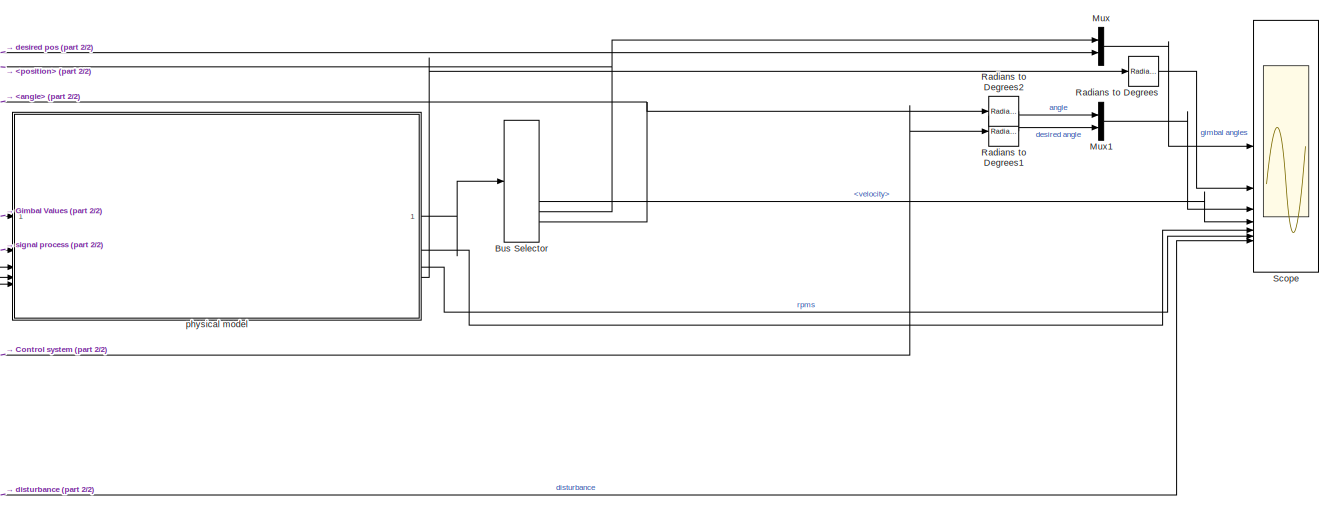
[diagram: root canvas - part 1/2, top right region]
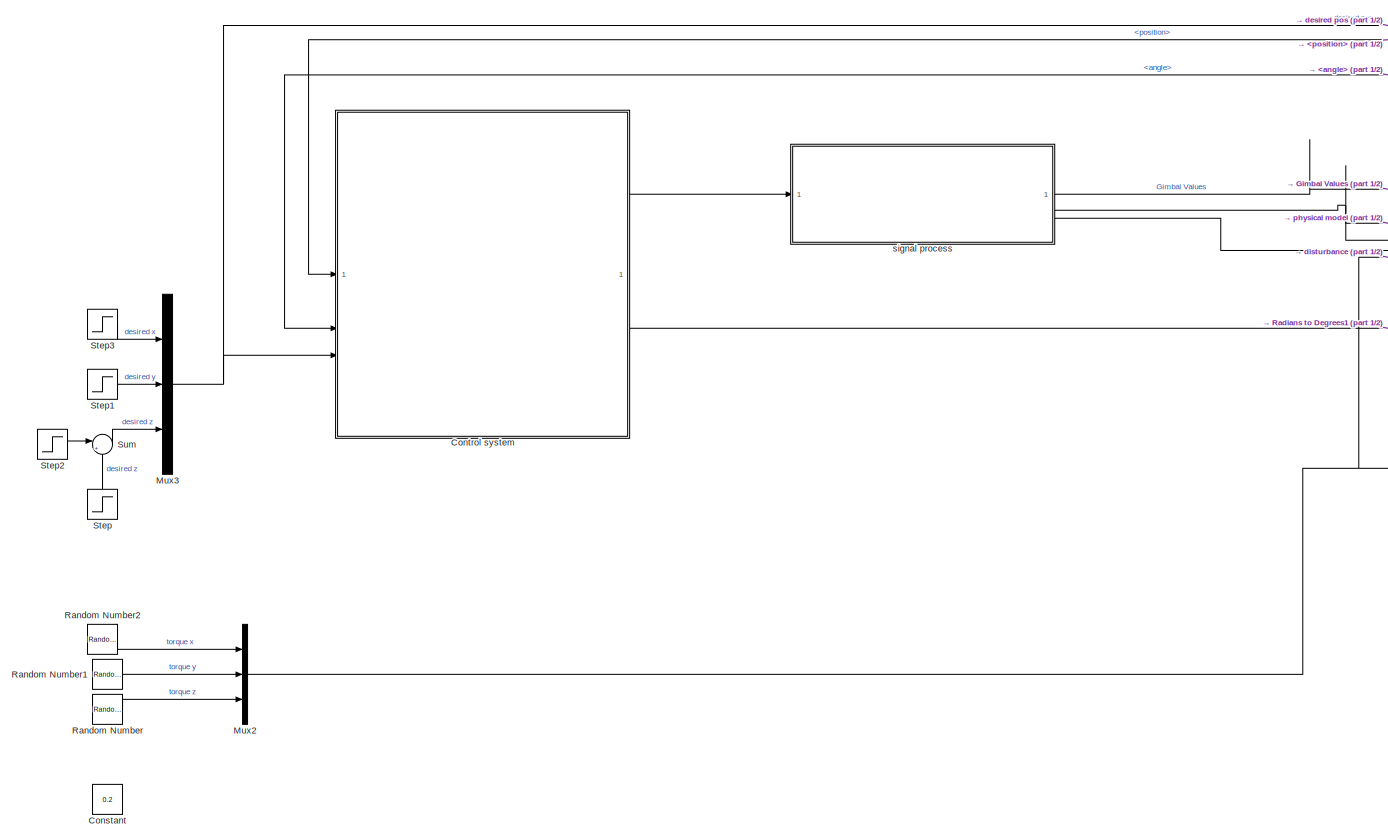
[diagram: root canvas - part 2/2, left side, full height]
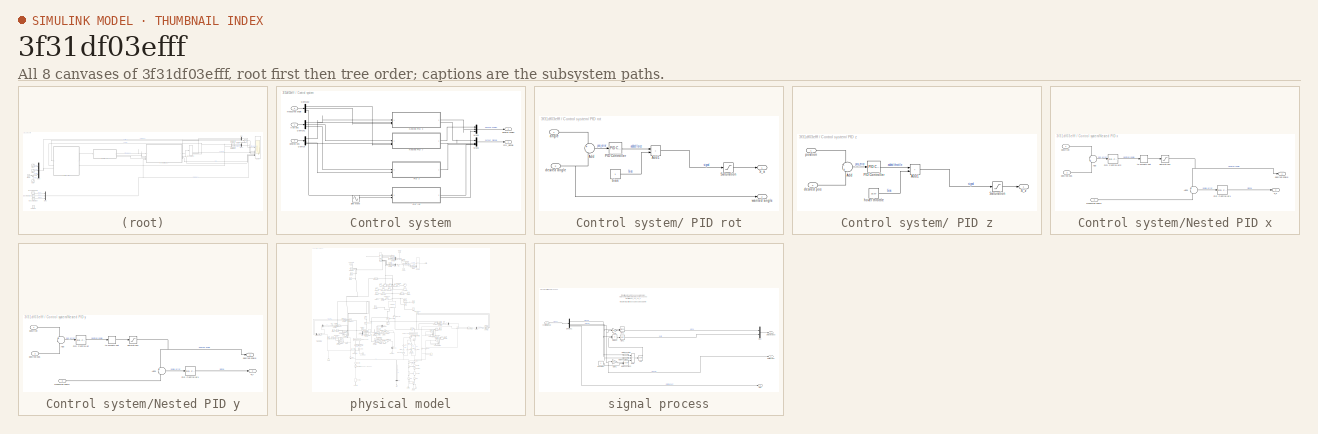
[diagram: thumbnail index - all 8 canvases of the model, root first then tree order]
MODEL slx_3f31df03efff
KIND model
CONFIG AbsTol = auto
CONFIG EnableMultiTasking = off
CONFIG FixedStep = auto
CONFIG MaxStep = 0.001
CONFIG MinStep = auto
CONFIG RelTol = auto
CONFIG SampleTimeConstraint = Unconstrained
CONFIG SolverName = VariableStepAuto
CONFIG StartTime = 0.0
CONFIG StopTime = 20
BLOCK [BusSelector] Bus Selector
  OutputSignals = acceleration,velocity,position,angular velocity,angle
BLOCK [Constant] Constant
  Value = 0.2
BLOCK [SubSystem] Control system
BLOCK [SubSystem] Control system/ PID rot
BLOCK [Sum] Control system/ PID rot/Add
  Inputs = +-
BLOCK [Sum] Control system/ PID rot/Add1
  IconShape = rectangular
BLOCK [Reference] Control system/ PID rot/PID Controller  REF=slpidlib/PID Controller
  LibrarySourceBlock = simulink/Continuous/PID Controller
  SourceBlock = slpidlib/PID Controller
  SourceType = PID 1dof
BLOCK [Outport] Control system/ PID rot/S_a
BLOCK [Saturate] Control system/ PID rot/Saturation
  LowerLimit = 0.5
  UpperLimit = 1.5
BLOCK [Inport] Control system/ PID rot/angle
  NameLocation = top
BLOCK [Constant] Control system/ PID rot/bias
BLOCK [Inport] Control system/ PID rot/desired angle
  NameLocation = top
  Port = 2
BLOCK [Outport] Control system/ PID rot/wanted angle
  Port = 2
BLOCK [SubSystem] Control system/ PID z
BLOCK [Sum] Control system/ PID z/Add
  Inputs = -+
BLOCK [Sum] Control system/ PID z/Add1
  IconShape = rectangular
BLOCK [Reference] Control system/ PID z/PID Controller  REF=slpidlib/PID Controller
  LibrarySourceBlock = simulink/Continuous/PID Controller
  SourceBlock = slpidlib/PID Controller
  SourceType = PID 1dof
BLOCK [Outport] Control system/ PID z/S_z
BLOCK [Saturate] Control system/ PID z/Saturation
  LowerLimit = 1e-3
  UpperLimit = 100
BLOCK [Inport] Control system/ PID z/desired pos
  NameLocation = top
  Port = 2
BLOCK [Constant] Control system/ PID z/hover throttle
  Value = 33.57
BLOCK [Inport] Control system/ PID z/position
  NameLocation = top
BLOCK [Demux] Control system/Demux
  Outputs = 3
BLOCK [Demux] Control system/Demux1
  Outputs = 3
BLOCK [Demux] Control system/Demux2
  Outputs = 3
BLOCK [Mux] Control system/Mux3
  DisplayOption = bar
BLOCK [Mux] Control system/Mux5
  DisplayOption = bar
  Inputs = 3
BLOCK [SubSystem] Control system/Nested PID x
BLOCK [Sum] Control system/Nested PID x/Add
  Inputs = -+
BLOCK [Sum] Control system/Nested PID x/Add1
  Inputs = +-
BLOCK [Reference] Control system/Nested PID x/PID Controller1  REF=slpidlib/PID Controller
  LibrarySourceBlock = simulink/Continuous/PID Controller
  SourceBlock = slpidlib/PID Controller
  SourceType = PID 1dof
BLOCK [Reference] Control system/Nested PID x/PID Controller2  REF=slpidlib/PID Controller
  LibrarySourceBlock = simulink/Continuous/PID Controller
  SourceBlock = slpidlib/PID Controller
  SourceType = PID 1dof
BLOCK [Outport] Control system/Nested PID x/S_x
  Port = 2
BLOCK [Saturate] Control system/Nested PID x/Saturation1
  LowerLimit = -deg2rad(20)
  UpperLimit = deg2rad(20)
BLOCK [Outport] Control system/Nested PID x/desired angle
BLOCK [Inport] Control system/Nested PID x/desired pos
  NameLocation = top
  Port = 2
BLOCK [Inport] Control system/Nested PID x/measured angle
  Port = 3
BLOCK [Inport] Control system/Nested PID x/position
  NameLocation = top
BLOCK [RateLimiter] Control system/Nested PID x/to smooth out
  FallingSlewLimit = -deg2rad(45)
  RisingSlewLimit = deg2rad(45)
  SampleTimeMode = inherited
BLOCK [SubSystem] Control system/Nested PID y
BLOCK [Sum] Control system/Nested PID y/Add
  Inputs = +-
BLOCK [Sum] Control system/Nested PID y/Add1
  Inputs = +-
BLOCK [Reference] Control system/Nested PID y/PID Controller  REF=slpidlib/PID Controller
  LibrarySourceBlock = simulink/Continuous/PID Controller
  SourceBlock = slpidlib/PID Controller
  SourceType = PID 1dof
BLOCK [Reference] Control system/Nested PID y/PID Controller1  REF=slpidlib/PID Controller
  LibrarySourceBlock = simulink/Continuous/PID Controller
  SourceBlock = slpidlib/PID Controller
  SourceType = PID 1dof
BLOCK [Outport] Control system/Nested PID y/S_y
  Port = 2
BLOCK [Saturate] Control system/Nested PID y/Saturation1
  LowerLimit = -deg2rad(20)
  UpperLimit = deg2rad(20)
BLOCK [Outport] Control system/Nested PID y/desired angle
BLOCK [Inport] Control system/Nested PID y/desired pos
  NameLocation = top
  Port = 2
BLOCK [Inport] Control system/Nested PID y/measured angle
  Port = 3
BLOCK [Inport] Control system/Nested PID y/position
  NameLocation = top
BLOCK [RateLimiter] Control system/Nested PID y/to smooth out
  FallingSlewLimit = -deg2rad(45)
  RisingSlewLimit = deg2rad(45)
  SampleTimeMode = inherited
BLOCK [Outport] Control system/PID_signals
BLOCK [Sin] Control system/Sine Wave
  Amplitude = pi/3
  Frequency = 0.7
  SampleTime = 0
BLOCK [Outport] Control system/desired angles
  Port = 2
BLOCK [Inport] Control system/desired pos
  Port = 3
BLOCK [Inport] Control system/measured angle
  Port = 2
BLOCK [Inport] Control system/true pos
BLOCK [Mux] Mux
  DisplayOption = bar
  Inputs = 2
BLOCK [Mux] Mux1
  DisplayOption = bar
  Inputs = 2
BLOCK [Mux] Mux2
  DisplayOption = bar
  Inputs = 3
BLOCK [Mux] Mux3
  DisplayOption = bar
  Inputs = 3
BLOCK [Reference] Radians to Degrees  REF=simulink_extras/Transformations/Radians
to Degrees
  SourceBlock = simulink_extras/Transformations/Radians\nto Degrees
  SourceType = RadiansToDegrees
BLOCK [Reference] Radians to Degrees1  REF=simulink_extras/Transformations/Radians
to Degrees
  SourceBlock = simulink_extras/Transformations/Radians\nto Degrees
  SourceType = RadiansToDegrees
BLOCK [Reference] Radians to Degrees2  REF=simulink_extras/Transformations/Radians
to Degrees
  SourceBlock = simulink_extras/Transformations/Radians\nto Degrees
  SourceType = RadiansToDegrees
BLOCK [RandomNumber] Random Number
  SampleTime = 2
  Variance = 0
BLOCK [RandomNumber] Random Number1
  SampleTime = 1
  Seed = 458
  Variance = 0
BLOCK [RandomNumber] Random Number2
  SampleTime = 1
  Variance = 0
BLOCK [Scope] Scope
  Floating = off
  NumInputPorts = 7
  ScopeSpecificationString = Simulink.scopes.TimeScopeBlockCfg('CurrentConfiguration', extmgr.ConfigurationSet(extmgr.Configuration('Core','General UI',true,'FigureColor',[0.313725490196078 0.313725490196078 0.313725490196078]),extmgr.Configuration('Core','Source UI',true),extmgr.Configuration('Sources','WiredSimulink',true,'DataLoggingVariableName','ScopeData1'),extmgr.Configuration('Visuals','Time Domain',true,'SerializedDi...<+8390ch>
BLOCK [Step] Step
  After = -2
  NameLocation = right
  SampleTime = 0
  Time = 15
BLOCK [Step] Step1
  After = 0
  SampleTime = 0
  Time = 0.5
BLOCK [Step] Step2
  After = 2
  SampleTime = 0
  Time = 2
BLOCK [Step] Step3
  After = 0
  SampleTime = 0
  Time = 0.5
BLOCK [Sum] Sum
  Inputs = |++
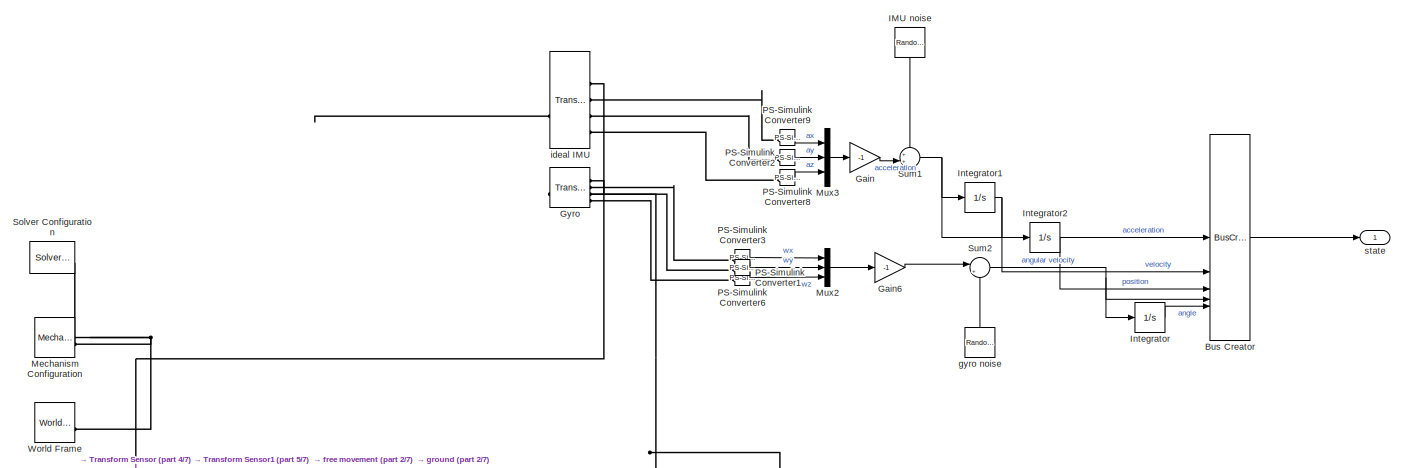
[diagram: physical model - part 1/7, top center region]
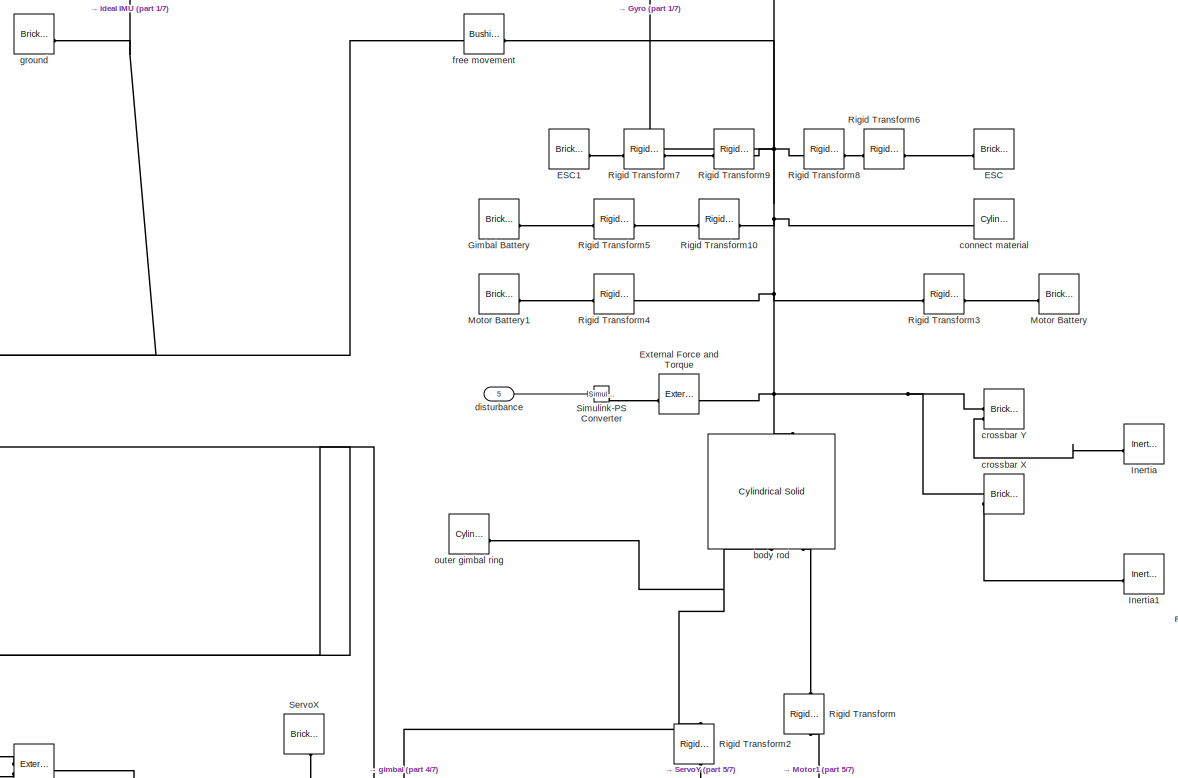
[diagram: physical model - part 2/7, central region]
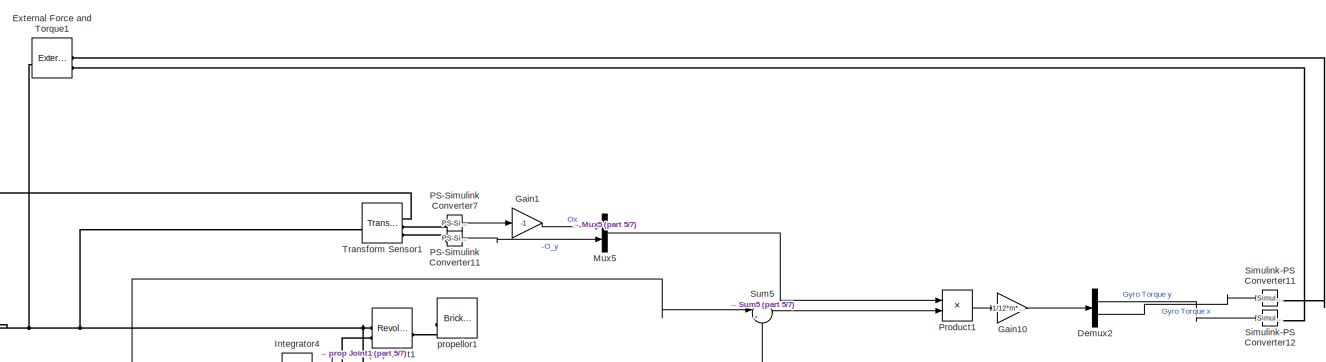
[diagram: physical model - part 3/7, middle right region]
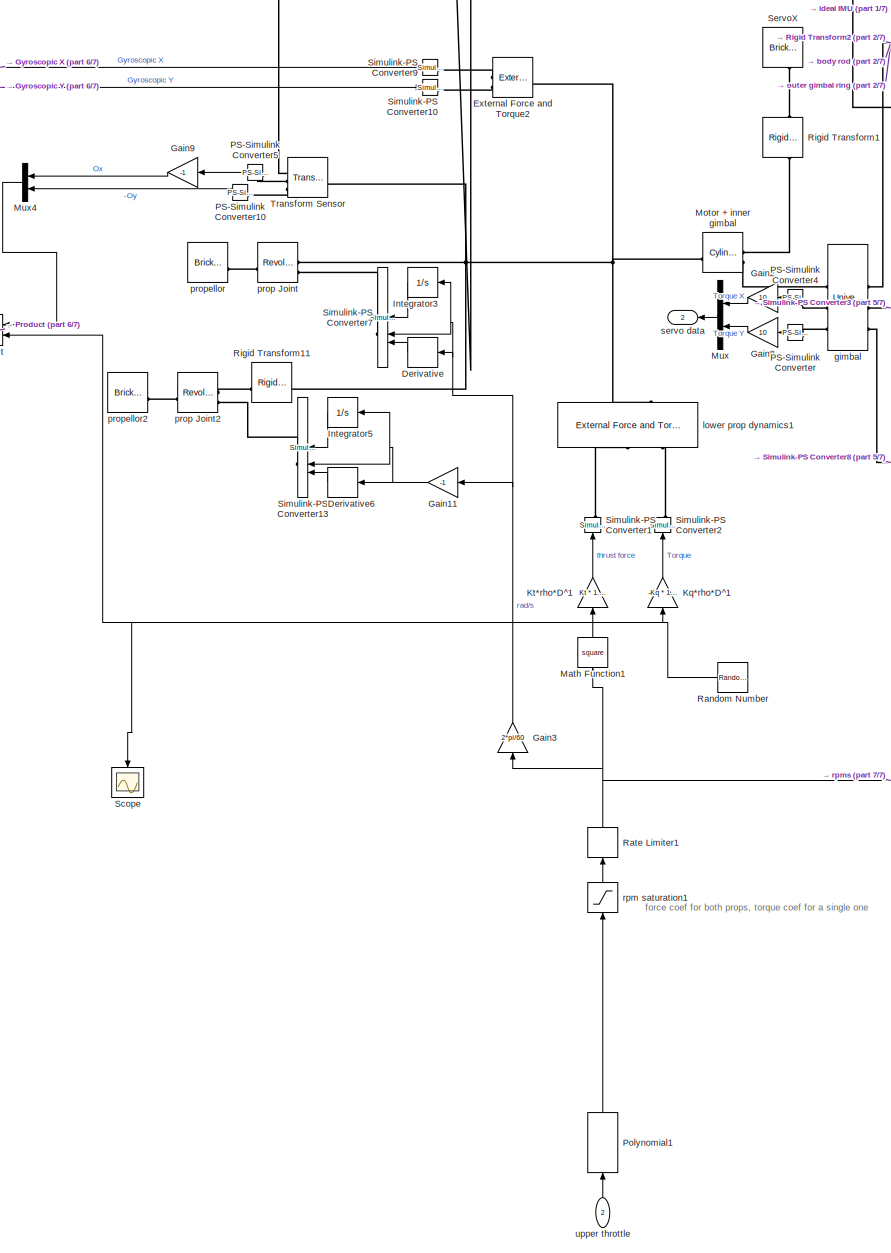
[diagram: physical model - part 4/7, bottom left region]
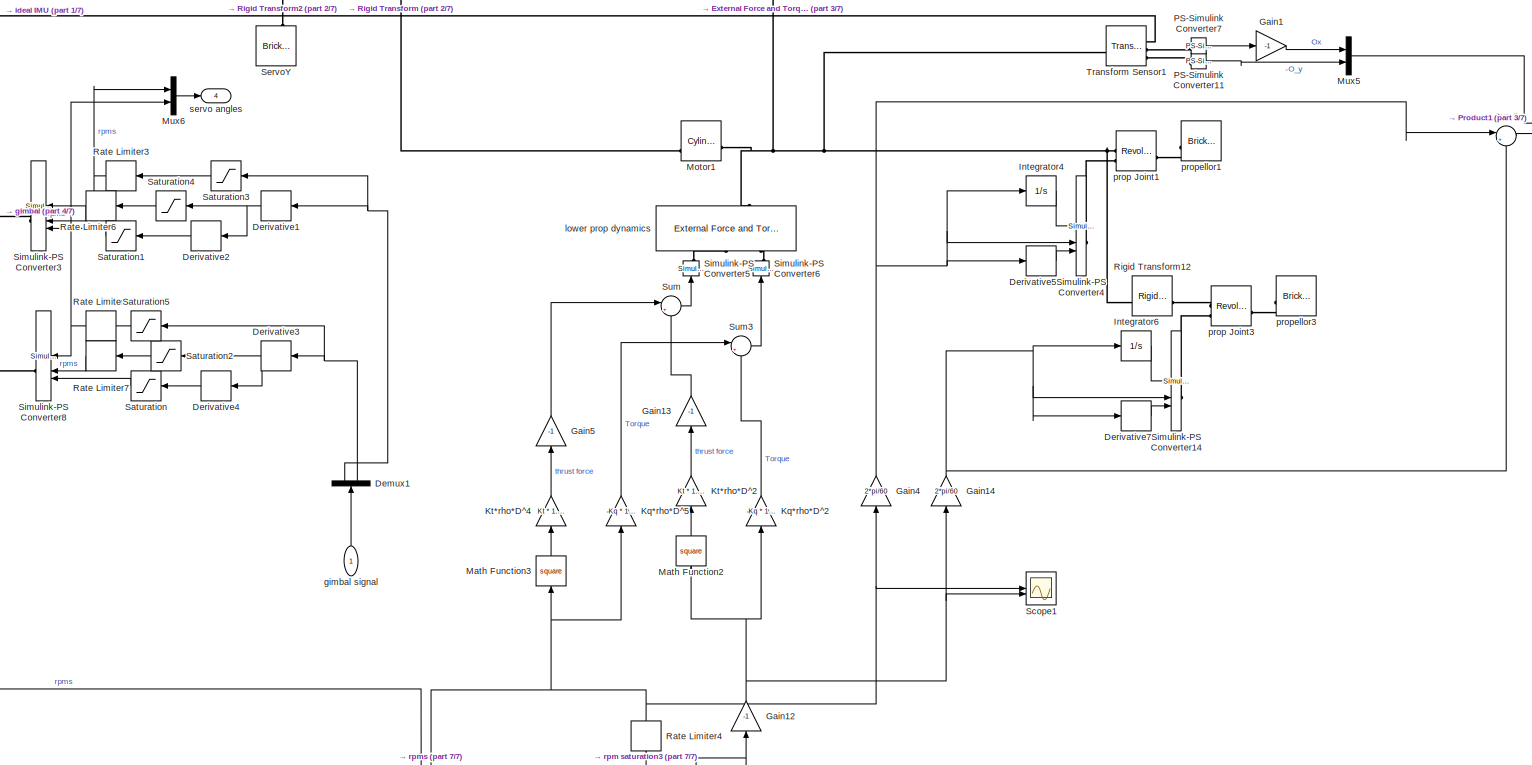
[diagram: physical model - part 5/7, central region]
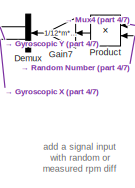
[diagram: physical model - part 6/7, middle left region]
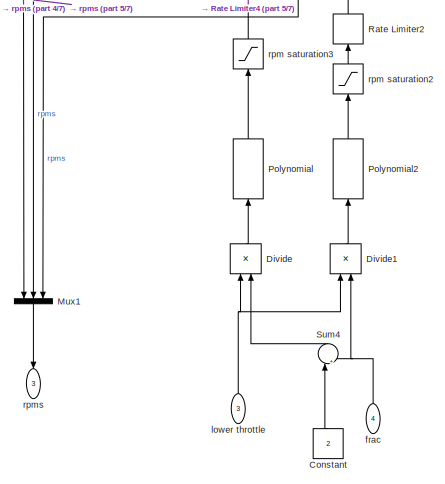
[diagram: physical model - part 7/7, bottom center region]
BLOCK [SubSystem] physical model
BLOCK [BusCreator] physical model/Bus Creator
  DisplayOption = bar
  InheritFromInputs = on
  Inputs = 5
BLOCK [Constant] physical model/Constant
  NameLocation = right
  Value = 2
BLOCK [Demux] physical model/Demux
  NameLocation = top
  Outputs = 2
BLOCK [Demux] physical model/Demux1
  NameLocation = right
  Outputs = 2
BLOCK [Demux] physical model/Demux2
  Outputs = 2
BLOCK [Derivative] physical model/Derivative
  NameLocation = top
BLOCK [Derivative] physical model/Derivative1
  NameLocation = top
BLOCK [Derivative] physical model/Derivative2
  NameLocation = top
BLOCK [Derivative] physical model/Derivative3
  NameLocation = top
BLOCK [Derivative] physical model/Derivative4
  NameLocation = top
BLOCK [Derivative] physical model/Derivative5
  NameLocation = top
BLOCK [Derivative] physical model/Derivative6
  NameLocation = top
BLOCK [Derivative] physical model/Derivative7
  NameLocation = top
BLOCK [Product] physical model/Divide
  Inputs = **
  NameLocation = right
BLOCK [Product] physical model/Divide1
  Inputs = **
  NameLocation = right
BLOCK [Reference] physical model/ESC  REF=sm_lib/Body Elements/Brick Solid
  SourceBlock = sm_lib/Body Elements/Brick Solid
  SourceType = Brick Solid
BLOCK [Reference] physical model/ESC1  REF=sm_lib/Body Elements/Brick Solid
  SourceBlock = sm_lib/Body Elements/Brick Solid
  SourceType = Brick Solid
BLOCK [Reference] physical model/External Force and Torque  REF=sm_lib/Forces and
Torques/External Force
and Torque
  SourceBlock = sm_lib/Forces and\nTorques/External Force\nand Torque
  SourceType = External Force\nand Torque
BLOCK [Reference] physical model/External Force and Torque1  REF=sm_lib/Forces and
Torques/External Force
and Torque
  SourceBlock = sm_lib/Forces and\nTorques/External Force\nand Torque
  SourceType = External Force\nand Torque
BLOCK [Reference] physical model/External Force and Torque2  REF=sm_lib/Forces and
Torques/External Force
and Torque
  SourceBlock = sm_lib/Forces and\nTorques/External Force\nand Torque
  SourceType = External Force\nand Torque
BLOCK [Gain] physical model/Gain
  Gain = -1
BLOCK [Gain] physical model/Gain1
  Gain = -1
BLOCK [Gain] physical model/Gain10
  Gain = 1/12*m*D^2
  NameLocation = top
BLOCK [Gain] physical model/Gain11
  Gain = -1
  NameLocation = top
BLOCK [Gain] physical model/Gain12
  Gain = -1
  NameLocation = right
BLOCK [Gain] physical model/Gain13
  Gain = -1
  NameLocation = right
BLOCK [Gain] physical model/Gain14
  Gain = 2*pi/60
  NameLocation = right
BLOCK [Gain] physical model/Gain2
  Gain = 10
  NameLocation = top
BLOCK [Gain] physical model/Gain3
  Gain = 2*pi/60
  NameLocation = right
BLOCK [Gain] physical model/Gain4
  Gain = 2*pi/60
  NameLocation = right
BLOCK [Gain] physical model/Gain5
  Gain = -1
  NameLocation = right
BLOCK [Gain] physical model/Gain6
  Gain = -1
BLOCK [Gain] physical model/Gain7
  Gain = 1/12*m*D^2
  NameLocation = top
BLOCK [Gain] physical model/Gain8
  Gain = 10
  NameLocation = top
BLOCK [Gain] physical model/Gain9
  Gain = -1
  NameLocation = top
BLOCK [Reference] physical model/Gimbal Battery  REF=sm_lib/Body Elements/Brick Solid
  SourceBlock = sm_lib/Body Elements/Brick Solid
  SourceType = Brick Solid
BLOCK [Reference] physical model/Gyro  REF=sm_lib/Frames and
Transforms/Transform
Sensor
  SourceBlock = sm_lib/Frames and\nTransforms/Transform\nSensor
  SourceType = Transform\nSensor
BLOCK [RandomNumber] physical model/IMU noise
  NameLocation = left
  SampleTime = 0.1
  Variance = 0
BLOCK [Reference] physical model/Inertia  REF=sm_lib/Body Elements/Inertia
  NameLocation = top
  SourceBlock = sm_lib/Body Elements/Inertia
  SourceType = Inertia
BLOCK [Reference] physical model/Inertia1  REF=sm_lib/Body Elements/Inertia
  NameLocation = top
  SourceBlock = sm_lib/Body Elements/Inertia
  SourceType = Inertia
BLOCK [Integrator] physical model/Integrator
BLOCK [Integrator] physical model/Integrator1
BLOCK [Integrator] physical model/Integrator2
BLOCK [Integrator] physical model/Integrator3
  NameLocation = top
BLOCK [Integrator] physical model/Integrator4
  NameLocation = top
BLOCK [Integrator] physical model/Integrator5
  NameLocation = top
BLOCK [Integrator] physical model/Integrator6
  NameLocation = top
BLOCK [Gain] physical model/Kq*rho*D^1
  Gain = -Kq * 1.225 * D^5
  NameLocation = right
BLOCK [Gain] physical model/Kq*rho*D^2
  Gain = -Kq * 1.225 * D^5
  NameLocation = right
BLOCK [Gain] physical model/Kq*rho*D^5
  Gain = -Kq * 1.225 * D^5
  NameLocation = right
BLOCK [Gain] physical model/Kt*rho*D^1
  Gain = Kt * 1.225 * D^4*2
  NameLocation = right
BLOCK [Gain] physical model/Kt*rho*D^2
  Gain = Kt * 1.225 * D^4
  NameLocation = right
BLOCK [Gain] physical model/Kt*rho*D^4
  Gain = Kt * 1.225 * D^4
  NameLocation = right
BLOCK [Math] physical model/Math Function1
  NameLocation = right
  Operator = square
BLOCK [Math] physical model/Math Function2
  NameLocation = right
  Operator = square
BLOCK [Math] physical model/Math Function3
  NameLocation = right
  Operator = square
BLOCK [Reference] physical model/Mechanism Configuration  REF=sm_lib/Utilities/Mechanism
Configuration
  SourceBlock = sm_lib/Utilities/Mechanism\nConfiguration
  SourceType = Mechanism\nConfiguration
BLOCK [Reference] physical model/Motor + inner gimbal  REF=sm_lib/Body Elements/Cylindrical Solid
  NameLocation = top
  SourceBlock = sm_lib/Body Elements/Cylindrical Solid
  SourceType = Cylindrical Solid
BLOCK [Reference] physical model/Motor Battery  REF=sm_lib/Body Elements/Brick Solid
  SourceBlock = sm_lib/Body Elements/Brick Solid
  SourceType = Brick Solid
BLOCK [Reference] physical model/Motor Battery1  REF=sm_lib/Body Elements/Brick Solid
  SourceBlock = sm_lib/Body Elements/Brick Solid
  SourceType = Brick Solid
BLOCK [Reference] physical model/Motor1  REF=sm_lib/Body Elements/Cylindrical Solid
  NameLocation = top
  SourceBlock = sm_lib/Body Elements/Cylindrical Solid
  SourceType = Cylindrical Solid
BLOCK [Mux] physical model/Mux
  DisplayOption = bar
  Inputs = 2
  NameLocation = top
BLOCK [Mux] physical model/Mux1
  DisplayOption = bar
  Inputs = 3
  NameLocation = left
BLOCK [Mux] physical model/Mux2
  DisplayOption = bar
  Inputs = 3
BLOCK [Mux] physical model/Mux3
  DisplayOption = bar
  Inputs = 3
BLOCK [Mux] physical model/Mux4
  DisplayOption = bar
  Inputs = 2
  NameLocation = top
BLOCK [Mux] physical model/Mux5
  DisplayOption = bar
  Inputs = 2
BLOCK [Mux] physical model/Mux6
  DisplayOption = bar
  Inputs = 2
BLOCK [Reference] physical model/PS-Simulink Converter  REF=nesl_utility/PS-Simulink
Converter
  NameLocation = top
  SourceBlock = nesl_utility/PS-Simulink\nConverter
  SourceType = PS-Simulink\nConverter
BLOCK [Reference] physical model/PS-Simulink Converter1  REF=nesl_utility/PS-Simulink
Converter
  SourceBlock = nesl_utility/PS-Simulink\nConverter
  SourceType = PS-Simulink\nConverter
BLOCK [Reference] physical model/PS-Simulink Converter10  REF=nesl_utility/PS-Simulink
Converter
  NameLocation = top
  SourceBlock = nesl_utility/PS-Simulink\nConverter
  SourceType = PS-Simulink\nConverter
BLOCK [Reference] physical model/PS-Simulink Converter11  REF=nesl_utility/PS-Simulink
Converter
  SourceBlock = nesl_utility/PS-Simulink\nConverter
  SourceType = PS-Simulink\nConverter
BLOCK [Reference] physical model/PS-Simulink Converter2  REF=nesl_utility/PS-Simulink
Converter
  SourceBlock = nesl_utility/PS-Simulink\nConverter
  SourceType = PS-Simulink\nConverter
BLOCK [Reference] physical model/PS-Simulink Converter3  REF=nesl_utility/PS-Simulink
Converter
  SourceBlock = nesl_utility/PS-Simulink\nConverter
  SourceType = PS-Simulink\nConverter
BLOCK [Reference] physical model/PS-Simulink Converter4  REF=nesl_utility/PS-Simulink
Converter
  NameLocation = top
  SourceBlock = nesl_utility/PS-Simulink\nConverter
  SourceType = PS-Simulink\nConverter
BLOCK [Reference] physical model/PS-Simulink Converter5  REF=nesl_utility/PS-Simulink
Converter
  NameLocation = top
  SourceBlock = nesl_utility/PS-Simulink\nConverter
  SourceType = PS-Simulink\nConverter
BLOCK [Reference] physical model/PS-Simulink Converter6  REF=nesl_utility/PS-Simulink
Converter
  SourceBlock = nesl_utility/PS-Simulink\nConverter
  SourceType = PS-Simulink\nConverter
BLOCK [Reference] physical model/PS-Simulink Converter7  REF=nesl_utility/PS-Simulink
Converter
  SourceBlock = nesl_utility/PS-Simulink\nConverter
  SourceType = PS-Simulink\nConverter
BLOCK [Reference] physical model/PS-Simulink Converter8  REF=nesl_utility/PS-Simulink
Converter
  SourceBlock = nesl_utility/PS-Simulink\nConverter
  SourceType = PS-Simulink\nConverter
BLOCK [Reference] physical model/PS-Simulink Converter9  REF=nesl_utility/PS-Simulink
Converter
  SourceBlock = nesl_utility/PS-Simulink\nConverter
  SourceType = PS-Simulink\nConverter
BLOCK [Polyval] physical model/Polynomial
  Coefs = [a, b, c]
  NameLocation = right
BLOCK [Polyval] physical model/Polynomial1
  Coefs = [a, b, c]
  NameLocation = right
BLOCK [Polyval] physical model/Polynomial2
  Coefs = [a, b, c]
  NameLocation = right
BLOCK [Product] physical model/Product
  NameLocation = top
BLOCK [Product] physical model/Product1
  NameLocation = top
BLOCK [RandomNumber] physical model/Random Number
  NameLocation = top
  SampleTime = 2
  Seed = 58954
  Variance = 1e4
BLOCK [RateLimiter] physical model/Rate Limiter1
  FallingSlewLimit = -RPM_rate
  NameLocation = right
  RisingSlewLimit = RPM_rate
  SampleTimeMode = inherited
BLOCK [RateLimiter] physical model/Rate Limiter2
  FallingSlewLimit = -RPM_rate
  NameLocation = right
  RisingSlewLimit = RPM_rate
  SampleTimeMode = inherited
BLOCK [RateLimiter] physical model/Rate Limiter3
  FallingSlewLimit = -deg2rad(Servo_rate)
  NameLocation = top
  RisingSlewLimit = deg2rad(Servo_rate)
  SampleTimeMode = inherited
BLOCK [RateLimiter] physical model/Rate Limiter4
  FallingSlewLimit = -RPM_rate
  NameLocation = right
  RisingSlewLimit = RPM_rate
  SampleTimeMode = inherited
BLOCK [RateLimiter] physical model/Rate Limiter5
  FallingSlewLimit = -deg2rad(Servo_rate)
  NameLocation = top
  RisingSlewLimit = deg2rad(Servo_rate)
  SampleTimeMode = inherited
BLOCK [RateLimiter] physical model/Rate Limiter6
  FallingSlewLimit = -deg2rad(Servo_acc)
  NameLocation = top
  RisingSlewLimit = deg2rad(Servo_acc)
  SampleTimeMode = inherited
BLOCK [RateLimiter] physical model/Rate Limiter7
  FallingSlewLimit = -deg2rad(Servo_acc)
  NameLocation = top
  RisingSlewLimit = deg2rad(Servo_acc)
  SampleTimeMode = inherited
BLOCK [Reference] physical model/Rigid Transform  REF=sm_lib/Frames and
Transforms/Rigid
Transform
  NameLocation = left
  SourceBlock = sm_lib/Frames and\nTransforms/Rigid\nTransform
  SourceType = Rigid\nTransform
BLOCK [Reference] physical model/Rigid Transform1  REF=sm_lib/Frames and
Transforms/Rigid
Transform
  NameLocation = right
  SourceBlock = sm_lib/Frames and\nTransforms/Rigid\nTransform
  SourceType = Rigid\nTransform
BLOCK [Reference] physical model/Rigid Transform10  REF=sm_lib/Frames and
Transforms/Rigid
Transform
  NameLocation = top
  SourceBlock = sm_lib/Frames and\nTransforms/Rigid\nTransform
  SourceType = Rigid\nTransform
BLOCK [Reference] physical model/Rigid Transform11  REF=sm_lib/Frames and
Transforms/Rigid
Transform
  NameLocation = top
  SourceBlock = sm_lib/Frames and\nTransforms/Rigid\nTransform
  SourceType = Rigid\nTransform
BLOCK [Reference] physical model/Rigid Transform12  REF=sm_lib/Frames and
Transforms/Rigid
Transform
  SourceBlock = sm_lib/Frames and\nTransforms/Rigid\nTransform
  SourceType = Rigid\nTransform
BLOCK [Reference] physical model/Rigid Transform2  REF=sm_lib/Frames and
Transforms/Rigid
Transform
  NameLocation = right
  SourceBlock = sm_lib/Frames and\nTransforms/Rigid\nTransform
  SourceType = Rigid\nTransform
BLOCK [Reference] physical model/Rigid Transform3  REF=sm_lib/Frames and
Transforms/Rigid
Transform
  SourceBlock = sm_lib/Frames and\nTransforms/Rigid\nTransform
  SourceType = Rigid\nTransform
BLOCK [Reference] physical model/Rigid Transform4  REF=sm_lib/Frames and
Transforms/Rigid
Transform
  SourceBlock = sm_lib/Frames and\nTransforms/Rigid\nTransform
  SourceType = Rigid\nTransform
BLOCK [Reference] physical model/Rigid Transform5  REF=sm_lib/Frames and
Transforms/Rigid
Transform
  SourceBlock = sm_lib/Frames and\nTransforms/Rigid\nTransform
  SourceType = Rigid\nTransform
BLOCK [Reference] physical model/Rigid Transform6  REF=sm_lib/Frames and
Transforms/Rigid
Transform
  SourceBlock = sm_lib/Frames and\nTransforms/Rigid\nTransform
  SourceType = Rigid\nTransform
BLOCK [Reference] physical model/Rigid Transform7  REF=sm_lib/Frames and
Transforms/Rigid
Transform
  SourceBlock = sm_lib/Frames and\nTransforms/Rigid\nTransform
  SourceType = Rigid\nTransform
BLOCK [Reference] physical model/Rigid Transform8  REF=sm_lib/Frames and
Transforms/Rigid
Transform
  SourceBlock = sm_lib/Frames and\nTransforms/Rigid\nTransform
  SourceType = Rigid\nTransform
BLOCK [Reference] physical model/Rigid Transform9  REF=sm_lib/Frames and
Transforms/Rigid
Transform
  NameLocation = top
  SourceBlock = sm_lib/Frames and\nTransforms/Rigid\nTransform
  SourceType = Rigid\nTransform
BLOCK [Saturate] physical model/Saturation
  LowerLimit = -deg2rad(Servo_acc)
  NameLocation = top
  UpperLimit = deg2rad(Servo_acc)
  ZeroCross = off
BLOCK [Saturate] physical model/Saturation1
  LowerLimit = -deg2rad(Servo_acc)
  NameLocation = top
  UpperLimit = deg2rad(Servo_acc)
  ZeroCross = off
BLOCK [Saturate] physical model/Saturation2
  LowerLimit = -deg2rad(Servo_rate)
  NameLocation = top
  UpperLimit = deg2rad(Servo_rate)
  ZeroCross = off
BLOCK [Saturate] physical model/Saturation3
  LowerLimit = -deg2rad(Servo_lim)
  NameLocation = top
  UpperLimit = deg2rad(Servo_lim)
  ZeroCross = off
BLOCK [Saturate] physical model/Saturation4
  LowerLimit = -deg2rad(Servo_rate)
  NameLocation = top
  UpperLimit = deg2rad(Servo_rate)
  ZeroCross = off
BLOCK [Saturate] physical model/Saturation5
  LowerLimit = -deg2rad(Servo_lim)
  NameLocation = top
  UpperLimit = deg2rad(Servo_lim)
  ZeroCross = off
BLOCK [Scope] physical model/Scope
  Floating = off
  NameLocation = left
  NumInputPorts = 1
  ScopeSpecificationString = Simulink.scopes.TimeScopeBlockCfg('CurrentConfiguration', extmgr.ConfigurationSet(extmgr.Configuration('Core','General UI',true),extmgr.Configuration('Core','Source UI',true),extmgr.Configuration('Sources','WiredSimulink',true,'DataLoggingVariableName','ScopeData1'),extmgr.Configuration('Visuals','Time Domain',true,'SerializedDisplays',{struct('MinYLimReal','-337.62839','MaxYLimReal','211.98533','...<+1565ch>
BLOCK [Scope] physical model/Scope1
  Floating = off
  NumInputPorts = 2
  ScopeSpecificationString = Simulink.scopes.TimeScopeBlockCfg('CurrentConfiguration', extmgr.ConfigurationSet(extmgr.Configuration('Core','General UI',true),extmgr.Configuration('Core','Source UI',true),extmgr.Configuration('Sources','WiredSimulink',true,'DataLoggingVariableName','ScopeData2'),extmgr.Configuration('Visuals','Time Domain',true),extmgr.Configuration('Tools','Plot Navigation',true),extmgr.Configuration('Tools',...<+40ch>
BLOCK [Reference] physical model/ServoX  REF=sm_lib/Body Elements/Brick Solid
  NameLocation = right
  SourceBlock = sm_lib/Body Elements/Brick Solid
  SourceType = Brick Solid
BLOCK [Reference] physical model/ServoY  REF=sm_lib/Body Elements/Brick Solid
  NameLocation = left
  SourceBlock = sm_lib/Body Elements/Brick Solid
  SourceType = Brick Solid
BLOCK [Reference] physical model/Simulink-PS Converter  REF=nesl_utility/Simulink-PS
Converter
  SourceBlock = nesl_utility/Simulink-PS\nConverter
  SourceType = Simulink-PS\nConverter
BLOCK [Reference] physical model/Simulink-PS Converter1  REF=nesl_utility/Simulink-PS
Converter
  NameLocation = right
  SourceBlock = nesl_utility/Simulink-PS\nConverter
  SourceType = Simulink-PS\nConverter
BLOCK [Reference] physical model/Simulink-PS Converter10  REF=nesl_utility/Simulink-PS
Converter
  SourceBlock = nesl_utility/Simulink-PS\nConverter
  SourceType = Simulink-PS\nConverter
BLOCK [Reference] physical model/Simulink-PS Converter11  REF=nesl_utility/Simulink-PS
Converter
  SourceBlock = nesl_utility/Simulink-PS\nConverter
  SourceType = Simulink-PS\nConverter
BLOCK [Reference] physical model/Simulink-PS Converter12  REF=nesl_utility/Simulink-PS
Converter
  SourceBlock = nesl_utility/Simulink-PS\nConverter
  SourceType = Simulink-PS\nConverter
BLOCK [Reference] physical model/Simulink-PS Converter13  REF=nesl_utility/Simulink-PS
Converter
  NameLocation = top
  SourceBlock = nesl_utility/Simulink-PS\nConverter
  SourceType = Simulink-PS\nConverter
BLOCK [Reference] physical model/Simulink-PS Converter14  REF=nesl_utility/Simulink-PS
Converter
  NameLocation = top
  SourceBlock = nesl_utility/Simulink-PS\nConverter
  SourceType = Simulink-PS\nConverter
BLOCK [Reference] physical model/Simulink-PS Converter2  REF=nesl_utility/Simulink-PS
Converter
  NameLocation = right
  SourceBlock = nesl_utility/Simulink-PS\nConverter
  SourceType = Simulink-PS\nConverter
BLOCK [Reference] physical model/Simulink-PS Converter3  REF=nesl_utility/Simulink-PS
Converter
  NameLocation = top
  SourceBlock = nesl_utility/Simulink-PS\nConverter
  SourceType = Simulink-PS\nConverter
BLOCK [Reference] physical model/Simulink-PS Converter4  REF=nesl_utility/Simulink-PS
Converter
  NameLocation = top
  SourceBlock = nesl_utility/Simulink-PS\nConverter
  SourceType = Simulink-PS\nConverter
BLOCK [Reference] physical model/Simulink-PS Converter5  REF=nesl_utility/Simulink-PS
Converter
  NameLocation = right
  SourceBlock = nesl_utility/Simulink-PS\nConverter
  SourceType = Simulink-PS\nConverter
BLOCK [Reference] physical model/Simulink-PS Converter6  REF=nesl_utility/Simulink-PS
Converter
  NameLocation = right
  SourceBlock = nesl_utility/Simulink-PS\nConverter
  SourceType = Simulink-PS\nConverter
BLOCK [Reference] physical model/Simulink-PS Converter7  REF=nesl_utility/Simulink-PS
Converter
  NameLocation = top
  SourceBlock = nesl_utility/Simulink-PS\nConverter
  SourceType = Simulink-PS\nConverter
BLOCK [Reference] physical model/Simulink-PS Converter8  REF=nesl_utility/Simulink-PS
Converter
  NameLocation = top
  SourceBlock = nesl_utility/Simulink-PS\nConverter
  SourceType = Simulink-PS\nConverter
BLOCK [Reference] physical model/Simulink-PS Converter9  REF=nesl_utility/Simulink-PS
Converter
  SourceBlock = nesl_utility/Simulink-PS\nConverter
  SourceType = Simulink-PS\nConverter
BLOCK [Reference] physical model/Solver Configuration  REF=nesl_utility/Solver
Configuration
  SourceBlock = nesl_utility/Solver\nConfiguration
  SourceType = Solver\nConfiguration
BLOCK [Sum] physical model/Sum
  Inputs = |++
BLOCK [Sum] physical model/Sum1
  Inputs = ++|
BLOCK [Sum] physical model/Sum2
  Inputs = |++
BLOCK [Sum] physical model/Sum3
  Inputs = |++
BLOCK [Sum] physical model/Sum4
  Inputs = |+-
  NameLocation = right
BLOCK [Sum] physical model/Sum5
  Inputs = |++
BLOCK [Reference] physical model/Transform Sensor  REF=sm_lib/Frames and
Transforms/Transform
Sensor
  NameLocation = top
  SourceBlock = sm_lib/Frames and\nTransforms/Transform\nSensor
  SourceType = Transform\nSensor
BLOCK [Reference] physical model/Transform Sensor1  REF=sm_lib/Frames and
Transforms/Transform
Sensor
  SourceBlock = sm_lib/Frames and\nTransforms/Transform\nSensor
  SourceType = Transform\nSensor
BLOCK [Reference] physical model/World Frame  REF=sm_lib/Frames and
Transforms/World Frame
  SourceBlock = sm_lib/Frames and\nTransforms/World Frame
  SourceType = World Frame
BLOCK [Reference] physical model/body rod  REF=sm_lib/Body Elements/Cylindrical Solid
  NameLocation = right
  SourceBlock = sm_lib/Body Elements/Cylindrical Solid
  SourceType = Cylindrical Solid
BLOCK [Reference] physical model/connect material  REF=sm_lib/Body Elements/Cylindrical Solid
  SourceBlock = sm_lib/Body Elements/Cylindrical Solid
  SourceType = Cylindrical Solid
BLOCK [Reference] physical model/crossbar X  REF=sm_lib/Body Elements/Brick Solid
  SourceBlock = sm_lib/Body Elements/Brick Solid
  SourceType = Brick Solid
BLOCK [Reference] physical model/crossbar Y  REF=sm_lib/Body Elements/Brick Solid
  SourceBlock = sm_lib/Body Elements/Brick Solid
  SourceType = Brick Solid
BLOCK [Inport] physical model/disturbance
  Port = 5
BLOCK [Inport] physical model/frac
  NameLocation = right
  Port = 4
BLOCK [Reference] physical model/free movement   REF=sm_lib/Joints/Bushing Joint
  SourceBlock = sm_lib/Joints/Bushing Joint
  SourceType = Bushing Joint
BLOCK [Reference] physical model/gimbal  REF=sm_lib/Joints/Universal
Joint
  NameLocation = top
  SourceBlock = sm_lib/Joints/Universal\nJoint
  SourceType = Universal\nJoint
BLOCK [Inport] physical model/gimbal signal
  NameLocation = right
BLOCK [Reference] physical model/ground  REF=sm_lib/Body Elements/Brick Solid
  NameLocation = top
  SourceBlock = sm_lib/Body Elements/Brick Solid
  SourceType = Brick Solid
BLOCK [RandomNumber] physical model/gyro noise
  NameLocation = right
  SampleTime = 0.5
  Seed = 2
  Variance = 0
BLOCK [Reference] physical model/ideal IMU  REF=sm_lib/Frames and
Transforms/Transform
Sensor
  SourceBlock = sm_lib/Frames and\nTransforms/Transform\nSensor
  SourceType = Transform\nSensor
BLOCK [Reference] physical model/lower prop dynamics  REF=sm_lib/Forces and
Torques/External Force
and Torque
  SourceBlock = sm_lib/Forces and\nTorques/External Force\nand Torque
  SourceType = External Force\nand Torque
BLOCK [Reference] physical model/lower prop dynamics1  REF=sm_lib/Forces and
Torques/External Force
and Torque
  NameLocation = right
  SourceBlock = sm_lib/Forces and\nTorques/External Force\nand Torque
  SourceType = External Force\nand Torque
BLOCK [Inport] physical model/lower throttle
  NameLocation = right
  Port = 3
BLOCK [Reference] physical model/outer gimbal ring  REF=sm_lib/Body Elements/Cylindrical Solid
  NameLocation = top
  SourceBlock = sm_lib/Body Elements/Cylindrical Solid
  SourceType = Cylindrical Solid
BLOCK [Reference] physical model/prop Joint  REF=sm_lib/Joints/Revolute Joint
  NameLocation = top
  SourceBlock = sm_lib/Joints/Revolute Joint
  SourceType = Revolute Joint
BLOCK [Reference] physical model/prop Joint1  REF=sm_lib/Joints/Revolute Joint
  NameLocation = top
  SourceBlock = sm_lib/Joints/Revolute Joint
  SourceType = Revolute Joint
BLOCK [Reference] physical model/prop Joint2  REF=sm_lib/Joints/Revolute Joint
  NameLocation = top
  SourceBlock = sm_lib/Joints/Revolute Joint
  SourceType = Revolute Joint
BLOCK [Reference] physical model/prop Joint3  REF=sm_lib/Joints/Revolute Joint
  NameLocation = top
  SourceBlock = sm_lib/Joints/Revolute Joint
  SourceType = Revolute Joint
BLOCK [Reference] physical model/propellor  REF=sm_lib/Body Elements/Brick Solid
  SourceBlock = sm_lib/Body Elements/Brick Solid
  SourceType = Brick Solid
BLOCK [Reference] physical model/propellor1  REF=sm_lib/Body Elements/Brick Solid
  SourceBlock = sm_lib/Body Elements/Brick Solid
  SourceType = Brick Solid
BLOCK [Reference] physical model/propellor2  REF=sm_lib/Body Elements/Brick Solid
  SourceBlock = sm_lib/Body Elements/Brick Solid
  SourceType = Brick Solid
BLOCK [Reference] physical model/propellor3  REF=sm_lib/Body Elements/Brick Solid
  SourceBlock = sm_lib/Body Elements/Brick Solid
  SourceType = Brick Solid
BLOCK [Saturate] physical model/rpm saturation1
  LowerLimit = RPM_min
  NameLocation = right
  UpperLimit = RPM_lim
BLOCK [Saturate] physical model/rpm saturation2
  LowerLimit = RPM_min
  NameLocation = right
  UpperLimit = RPM_lim
BLOCK [Saturate] physical model/rpm saturation3
  LowerLimit = RPM_min
  NameLocation = right
  UpperLimit = RPM_lim
BLOCK [Outport] physical model/rpms
  NameLocation = left
  Port = 3
BLOCK [Outport] physical model/servo angles
  Port = 4
BLOCK [Outport] physical model/servo data
  NameLocation = top
  Port = 2
BLOCK [Outport] physical model/state
BLOCK [Inport] physical model/upper throttle
  NameLocation = right
  Port = 2
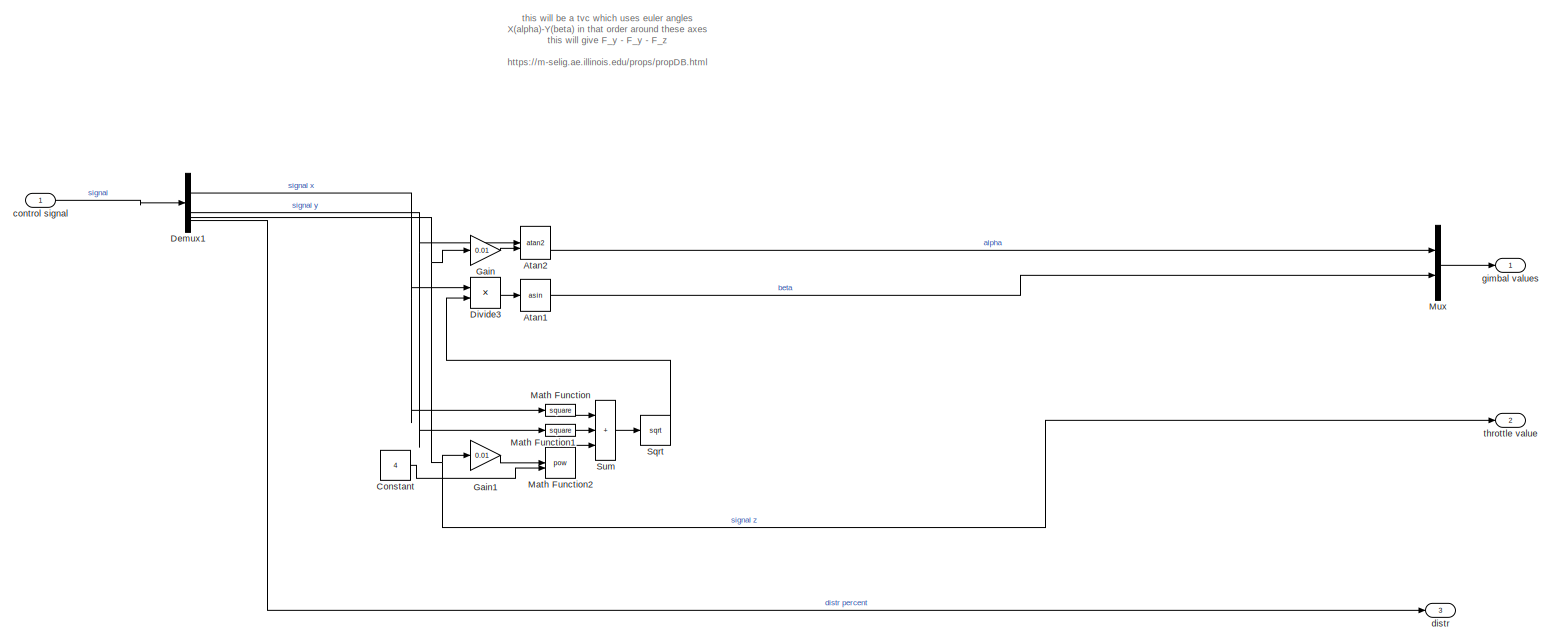
[diagram: signal process - part 1/1, most of the canvas]
BLOCK [SubSystem] signal process
BLOCK [Trigonometry] signal process/Atan1
  Operator = asin
BLOCK [Trigonometry] signal process/Atan2
  Operator = atan2
BLOCK [Constant] signal process/Constant
  Value = 4
BLOCK [Demux] signal process/Demux1
BLOCK [Product] signal process/Divide3
  Inputs = */
BLOCK [Gain] signal process/Gain
  Gain = 0.01
BLOCK [Gain] signal process/Gain1
  Gain = 0.01
BLOCK [Math] signal process/Math Function
  Operator = square
BLOCK [Math] signal process/Math Function1
  Operator = square
BLOCK [Math] signal process/Math Function2
  Operator = pow
  OutputSignalType = real
BLOCK [Mux] signal process/Mux
  DisplayOption = bar
  Inputs = 2
BLOCK [Sqrt] signal process/Sqrt
BLOCK [Sum] signal process/Sum
  IconShape = rectangular
  Inputs = +++
BLOCK [Inport] signal process/control signal
BLOCK [Outport] signal process/distr
  Port = 3
BLOCK [Outport] signal process/gimbal values
BLOCK [Outport] signal process/throttle value
  Port = 2
ANNOTATION physical model: add a signal input with random or measured rpm diff
ANNOTATION physical model: force coef for both props, torque coef for a single one
ANNOTATION signal process: this will be a tvc which uses euler angles X(alpha)-Y(beta) in that order around these axes this will give F_y - F_y - F_z https://m-selig.ae.illinois.edu/props/propDB.html
LINE Bus Selector:2 -> Scope:4
NET Bus Selector:3 -> Control system:1, Mux:1
NET Bus Selector:5 -> Control system:2, Radians to Degrees2:1
LINE Control system/ PID rot/Add1:1 -> Control system/ PID rot/Saturation:1
LINE Control system/ PID rot/Add:1 -> Control system/ PID rot/PID Controller:1
LINE Control system/ PID rot/PID Controller:1 -> Control system/ PID rot/Add1:1
LINE Control system/ PID rot/Saturation:1 -> Control system/ PID rot/S_a:1
LINE Control system/ PID rot/angle:1 -> Control system/ PID rot/Add:1
LINE Control system/ PID rot/bias:1 -> Control system/ PID rot/Add1:2
NET Control system/ PID rot/desired angle:1 -> Control system/ PID rot/Add:2, Control system/ PID rot/wanted angle:1
LINE Control system/ PID rot:1 -> Control system/Mux3:4
LINE Control system/ PID rot:2 -> Control system/Mux5:3
LINE Control system/ PID z/Add1:1 -> Control system/ PID z/Saturation:1
LINE Control system/ PID z/Add:1 -> Control system/ PID z/PID Controller:1
LINE Control system/ PID z/PID Controller:1 -> Control system/ PID z/Add1:1
LINE Control system/ PID z/Saturation:1 -> Control system/ PID z/S_z:1
LINE Control system/ PID z/desired pos:1 -> Control system/ PID z/Add:2
LINE Control system/ PID z/hover throttle:1 -> Control system/ PID z/Add1:2
LINE Control system/ PID z/position:1 -> Control system/ PID z/Add:1
LINE Control system/ PID z:1 -> Control system/Mux3:3
LINE Control system/Demux1:1 -> Control system/Nested PID x:1
LINE Control system/Demux1:2 -> Control system/Nested PID y:1
LINE Control system/Demux1:3 -> Control system/ PID z:1
LINE Control system/Demux2:1 -> Control system/Nested PID y:3
LINE Control system/Demux2:2 -> Control system/Nested PID x:3
LINE Control system/Demux2:3 -> Control system/ PID rot:1
LINE Control system/Demux:1 -> Control system/Nested PID x:2
LINE Control system/Demux:2 -> Control system/Nested PID y:2
LINE Control system/Demux:3 -> Control system/ PID z:2
LINE Control system/Mux3:1 -> Control system/PID_signals:1
LINE Control system/Mux5:1 -> Control system/desired angles:1
LINE Control system/Nested PID x/Add1:1 -> Control system/Nested PID x/PID Controller1:1
LINE Control system/Nested PID x/Add:1 -> Control system/Nested PID x/PID Controller2:1
LINE Control system/Nested PID x/PID Controller1:1 -> Control system/Nested PID x/S_x:1
LINE Control system/Nested PID x/PID Controller2:1 -> Control system/Nested PID x/to smooth out:1
NET Control system/Nested PID x/Saturation1:1 -> Control system/Nested PID x/Add1:1, Control system/Nested PID x/desired angle:1
LINE Control system/Nested PID x/desired pos:1 -> Control system/Nested PID x/Add:2
LINE Control system/Nested PID x/measured angle:1 -> Control system/Nested PID x/Add1:2
LINE Control system/Nested PID x/position:1 -> Control system/Nested PID x/Add:1
LINE Control system/Nested PID x/to smooth out:1 -> Control system/Nested PID x/Saturation1:1
LINE Control system/Nested PID x:1 -> Control system/Mux5:2
LINE Control system/Nested PID x:2 -> Control system/Mux3:1
LINE Control system/Nested PID y/Add1:1 -> Control system/Nested PID y/PID Controller1:1
LINE Control system/Nested PID y/Add:1 -> Control system/Nested PID y/PID Controller:1
LINE Control system/Nested PID y/PID Controller1:1 -> Control system/Nested PID y/S_y:1
LINE Control system/Nested PID y/PID Controller:1 -> Control system/Nested PID y/to smooth out:1
NET Control system/Nested PID y/Saturation1:1 -> Control system/Nested PID y/Add1:1, Control system/Nested PID y/desired angle:1
LINE Control system/Nested PID y/desired pos:1 -> Control system/Nested PID y/Add:2
LINE Control system/Nested PID y/measured angle:1 -> Control system/Nested PID y/Add1:2
LINE Control system/Nested PID y/position:1 -> Control system/Nested PID y/Add:1
LINE Control system/Nested PID y/to smooth out:1 -> Control system/Nested PID y/Saturation1:1
LINE Control system/Nested PID y:1 -> Control system/Mux5:1
LINE Control system/Nested PID y:2 -> Control system/Mux3:2
LINE Control system/Sine Wave:1 -> Control system/ PID rot:2
LINE Control system/desired pos:1 -> Control system/Demux:1
LINE Control system/measured angle:1 -> Control system/Demux2:1
LINE Control system/true pos:1 -> Control system/Demux1:1
LINE Control system:1 -> signal process:1
LINE Control system:2 -> Radians to Degrees1:1
LINE Mux1:1 -> Scope:3
NET Mux2:1 -> Scope:7, physical model:5
NET Mux3:1 -> Control system:3, Mux:2
LINE Mux:1 -> Scope:1
LINE Radians to Degrees1:1 -> Mux1:2
LINE Radians to Degrees2:1 -> Mux1:1
LINE Radians to Degrees:1 -> Scope:2
LINE Random Number1:1 -> Mux2:2
LINE Random Number2:1 -> Mux2:1
LINE Random Number:1 -> Mux2:3
LINE Step1:1 -> Mux3:2
LINE Step2:1 -> Sum:1
LINE Step3:1 -> Mux3:1
LINE Step:1 -> Sum:2
LINE Sum:1 -> Mux3:3
LINE physical model/Bus Creator:1 -> physical model/state:1
LINE physical model/Constant:1 -> physical model/Sum4:1
NET physical model/Demux1:1 -> physical model/Derivative1:1, physical model/Saturation3:1
NET physical model/Demux1:2 -> physical model/Derivative3:1, physical model/Saturation5:1
LINE physical model/Demux2:1 -> physical model/Simulink-PS Converter12:1
LINE physical model/Demux2:2 -> physical model/Simulink-PS Converter11:1
LINE physical model/Demux:1 -> physical model/Simulink-PS Converter10:1
LINE physical model/Demux:2 -> physical model/Simulink-PS Converter9:1
NET physical model/Derivative1:1 -> physical model/Derivative2:1, physical model/Saturation4:1
LINE physical model/Derivative2:1 -> physical model/Saturation1:1
NET physical model/Derivative3:1 -> physical model/Derivative4:1, physical model/Saturation2:1
LINE physical model/Derivative4:1 -> physical model/Saturation:1
LINE physical model/Derivative5:1 -> physical model/Simulink-PS Converter4:3
LINE physical model/Derivative6:1 -> physical model/Simulink-PS Converter13:3
LINE physical model/Derivative7:1 -> physical model/Simulink-PS Converter14:3
LINE physical model/Derivative:1 -> physical model/Simulink-PS Converter7:3
LINE physical model/Divide1:1 -> physical model/Polynomial2:1
LINE physical model/Divide:1 -> physical model/Polynomial:1
LINE physical model/Gain10:1 -> physical model/Demux2:1
NET physical model/Gain11:1 -> physical model/Derivative6:1, physical model/Integrator5:1, physical model/Simulink-PS Converter13:2
NET physical model/Gain12:1 -> physical model/Gain14:1, physical model/Kq*rho*D^2:1, physical model/Math Function2:1, physical model/Scope1:2
LINE physical model/Gain13:1 -> physical model/Sum:2
NET physical model/Gain14:1 -> physical model/Derivative7:1, physical model/Integrator6:1, physical model/Simulink-PS Converter14:2, physical model/Sum5:2
LINE physical model/Gain1:1 -> physical model/Mux5:1
LINE physical model/Gain2:1 -> physical model/Mux:1
NET physical model/Gain3:1 -> physical model/Derivative:1, physical model/Gain11:1, physical model/Integrator3:1, physical model/Simulink-PS Converter7:2
NET physical model/Gain4:1 -> physical model/Derivative5:1, physical model/Integrator4:1, physical model/Simulink-PS Converter4:2, physical model/Sum5:1
LINE physical model/Gain5:1 -> physical model/Sum:1
LINE physical model/Gain6:1 -> physical model/Sum2:1
LINE physical model/Gain7:1 -> physical model/Demux:1
LINE physical model/Gain8:1 -> physical model/Mux:2
LINE physical model/Gain9:1 -> physical model/Mux4:1
LINE physical model/Gain:1 -> physical model/Sum1:2
LINE physical model/IMU noise:1 -> physical model/Sum1:1
NET physical model/Integrator1:1 -> physical model/Bus Creator:2, physical model/Integrator2:1
LINE physical model/Integrator2:1 -> physical model/Bus Creator:3
LINE physical model/Integrator3:1 -> physical model/Simulink-PS Converter7:1
LINE physical model/Integrator4:1 -> physical model/Simulink-PS Converter4:1
LINE physical model/Integrator5:1 -> physical model/Simulink-PS Converter13:1
LINE physical model/Integrator6:1 -> physical model/Simulink-PS Converter14:1
LINE physical model/Integrator:1 -> physical model/Bus Creator:5
LINE physical model/Kq*rho*D^1:1 -> physical model/Simulink-PS Converter2:1
LINE physical model/Kq*rho*D^2:1 -> physical model/Sum3:2
LINE physical model/Kq*rho*D^5:1 -> physical model/Sum3:1
LINE physical model/Kt*rho*D^1:1 -> physical model/Simulink-PS Converter1:1
LINE physical model/Kt*rho*D^2:1 -> physical model/Gain13:1
LINE physical model/Kt*rho*D^4:1 -> physical model/Gain5:1
LINE physical model/Math Function1:1 -> physical model/Kt*rho*D^1:1
LINE physical model/Math Function2:1 -> physical model/Kt*rho*D^2:1
LINE physical model/Math Function3:1 -> physical model/Kt*rho*D^4:1
LINE physical model/Mux1:1 -> physical model/rpms:1
LINE physical model/Mux2:1 -> physical model/Gain6:1
LINE physical model/Mux3:1 -> physical model/Gain:1
LINE physical model/Mux4:1 -> physical model/Product:1
LINE physical model/Mux5:1 -> physical model/Product1:1
LINE physical model/Mux6:1 -> physical model/servo angles:1
LINE physical model/Mux:1 -> physical model/servo data:1
LINE physical model/PS-Simulink Converter10:1 -> physical model/Mux4:2
LINE physical model/PS-Simulink Converter11:1 -> physical model/Mux5:2
LINE physical model/PS-Simulink Converter1:1 -> physical model/Mux2:3
LINE physical model/PS-Simulink Converter2:1 -> physical model/Mux3:2
LINE physical model/PS-Simulink Converter3:1 -> physical model/Mux2:1
LINE physical model/PS-Simulink Converter4:1 -> physical model/Gain2:1
LINE physical model/PS-Simulink Converter5:1 -> physical model/Gain9:1
LINE physical model/PS-Simulink Converter6:1 -> physical model/Mux2:2
LINE physical model/PS-Simulink Converter7:1 -> physical model/Gain1:1
LINE physical model/PS-Simulink Converter8:1 -> physical model/Mux3:3
LINE physical model/PS-Simulink Converter9:1 -> physical model/Mux3:1
LINE physical model/PS-Simulink Converter:1 -> physical model/Gain8:1
LINE physical model/Polynomial1:1 -> physical model/rpm saturation1:1
LINE physical model/Polynomial2:1 -> physical model/rpm saturation2:1
LINE physical model/Polynomial:1 -> physical model/rpm saturation3:1
LINE physical model/Product1:1 -> physical model/Gain10:1
LINE physical model/Product:1 -> physical model/Gain7:1
NET physical model/Random Number:1 -> physical model/Kq*rho*D^1:1, physical model/Product:2, physical model/Scope:1
NET physical model/Rate Limiter1:1 -> physical model/Gain3:1, physical model/Math Function1:1, physical model/Mux1:1
NET physical model/Rate Limiter2:1 -> physical model/Gain12:1, physical model/Mux1:3
NET physical model/Rate Limiter3:1 -> physical model/Mux6:1, physical model/Simulink-PS Converter3:1
NET physical model/Rate Limiter4:1 -> physical model/Gain4:1, physical model/Kq*rho*D^5:1, physical model/Math Function3:1, physical model/Mux1:2, physical model/Scope1:1
LINE physical model/Rate Limiter6:1 -> physical model/Simulink-PS Converter3:2
LINE physical model/Rate Limiter7:1 -> physical model/Simulink-PS Converter8:2
LINE physical model/Saturation1:1 -> physical model/Simulink-PS Converter3:3
LINE physical model/Saturation2:1 -> physical model/Rate Limiter7:1
LINE physical model/Saturation3:1 -> physical model/Rate Limiter3:1
LINE physical model/Saturation4:1 -> physical model/Rate Limiter6:1
NET physical model/Saturation5:1 -> physical model/Mux6:2, physical model/Simulink-PS Converter8:1
LINE physical model/Saturation:1 -> physical model/Simulink-PS Converter8:3
NET physical model/Sum1:1 -> physical model/Bus Creator:1, physical model/Integrator1:1
NET physical model/Sum2:1 -> physical model/Bus Creator:4, physical model/Integrator:1
LINE physical model/Sum3:1 -> physical model/Simulink-PS Converter6:1
LINE physical model/Sum4:1 -> physical model/Divide:2
LINE physical model/Sum5:1 -> physical model/Product1:2
LINE physical model/Sum:1 -> physical model/Simulink-PS Converter5:1
LINE physical model/disturbance:1 -> physical model/Simulink-PS Converter:1
NET physical model/frac:1 -> physical model/Divide1:2, physical model/Sum4:2
LINE physical model/gimbal signal:1 -> physical model/Demux1:1
LINE physical model/gyro noise:1 -> physical model/Sum2:2
NET physical model/lower throttle:1 -> physical model/Divide1:1, physical model/Divide:1
LINE physical model/rpm saturation1:1 -> physical model/Rate Limiter1:1
LINE physical model/rpm saturation2:1 -> physical model/Rate Limiter2:1
LINE physical model/rpm saturation3:1 -> physical model/Rate Limiter4:1
LINE physical model/upper throttle:1 -> physical model/Polynomial1:1
LINE physical model:1 -> Bus Selector:1
LINE physical model:2 -> Scope:5
LINE physical model:3 -> Scope:6
LINE physical model:4 -> Radians to Degrees:1
LINE signal process/Atan1:1 -> signal process/Mux:2
LINE signal process/Atan2:1 -> signal process/Mux:1
LINE signal process/Constant:1 -> signal process/Math Function2:2
NET signal process/Demux1:1 -> signal process/Divide3:1, signal process/Math Function:1
NET signal process/Demux1:2 -> signal process/Atan2:1, signal process/Math Function1:1
NET signal process/Demux1:3 -> signal process/Gain1:1, signal process/Gain:1, signal process/throttle value:1
LINE signal process/Demux1:4 -> signal process/distr:1
LINE signal process/Divide3:1 -> signal process/Atan1:1
LINE signal process/Gain1:1 -> signal process/Math Function2:1
LINE signal process/Gain:1 -> signal process/Atan2:2
LINE signal process/Math Function1:1 -> signal process/Sum:2
LINE signal process/Math Function2:1 -> signal process/Sum:3
LINE signal process/Math Function:1 -> signal process/Sum:1
LINE signal process/Mux:1 -> signal process/gimbal values:1
LINE signal process/Sqrt:1 -> signal process/Divide3:2
LINE signal process/Sum:1 -> signal process/Sqrt:1
LINE signal process/control signal:1 -> signal process/Demux1:1
LINE signal process:1 -> physical model:1
NET signal process:2 -> physical model:2, physical model:3
LINE signal process:3 -> physical model:4
PLINE physical model/ESC1:LConn1 -- physical model/Rigid Transform7:RConn1
PLINE physical model/ESC:LConn1 -- physical model/Rigid Transform6:RConn1
PLINE physical model/External Force and Torque1:LConn1 -- physical model/Simulink-PS Converter11:RConn1
PLINE physical model/External Force and Torque1:LConn2 -- physical model/Simulink-PS Converter12:RConn1
PNET net1: physical model/External Force and Torque1:RConn1 -- physical model/Motor1:RConn1 -- physical model/Rigid Transform12:LConn1 -- physical model/Transform Sensor1:LConn1 -- physical model/lower prop dynamics:RConn1 -- physical model/prop Joint1:LConn1
PLINE physical model/External Force and Torque2:LConn1 -- physical model/Simulink-PS Converter9:RConn1
PLINE physical model/External Force and Torque2:LConn2 -- physical model/Simulink-PS Converter10:RConn1
PNET net2: physical model/External Force and Torque2:RConn1 -- physical model/Motor + inner gimbal:RConn1 -- physical model/Rigid Transform11:LConn1 -- physical model/Transform Sensor:LConn1 -- physical model/lower prop dynamics1:RConn1 -- physical model/prop Joint:LConn1
PLINE physical model/External Force and Torque:LConn1 -- physical model/Simulink-PS Converter:RConn1
PNET net3: physical model/External Force and Torque:RConn1 -- physical model/Gyro:LConn1 -- physical model/Rigid Transform10:LConn1 -- physical model/Rigid Transform3:LConn1 -- physical model/Rigid Transform4:LConn1 -- physical model/Rigid Transform8:LConn1 -- physical model/Rigid Transform9:LConn1 -- physical model/body rod:RConn1 -- physical model/connect material:RConn1 -- physical model/crossbar X:LConn1 -- physical model/crossbar Y:LConn1 -- physical model/free movement :RConn1 -- physical model/ideal IMU:LConn1
PLINE physical model/Gimbal Battery:LConn1 -- physical model/Rigid Transform5:RConn1
PNET net4: physical model/Gyro:RConn1 -- physical model/Mechanism Configuration:RConn1 -- physical model/Solver Configuration:RConn1 -- physical model/Transform Sensor1:RConn1 -- physical model/Transform Sensor:RConn1 -- physical model/World Frame:RConn1 -- physical model/free movement :LConn1 -- physical model/ground:LConn1 -- physical model/ideal IMU:RConn1
PLINE physical model/Gyro:RConn2 -- physical model/PS-Simulink Converter3:LConn1
PLINE physical model/Gyro:RConn3 -- physical model/PS-Simulink Converter6:LConn1
PLINE physical model/Gyro:RConn4 -- physical model/PS-Simulink Converter1:LConn1
PLINE physical model/Inertia1:RConn1 -- physical model/crossbar X:LConn2
PLINE physical model/Inertia:RConn1 -- physical model/crossbar Y:LConn2
PLINE physical model/Motor + inner gimbal:LConn1 -- physical model/Rigid Transform1:LConn1
PLINE physical model/Motor + inner gimbal:LConn2 -- physical model/gimbal:RConn1
PLINE physical model/Motor Battery1:LConn1 -- physical model/Rigid Transform4:RConn1
PLINE physical model/Motor Battery:LConn1 -- physical model/Rigid Transform3:RConn1
PLINE physical model/Motor1:LConn2 -- physical model/Rigid Transform:RConn1
PLINE physical model/PS-Simulink Converter10:LConn1 -- physical model/Transform Sensor:RConn3
PLINE physical model/PS-Simulink Converter11:LConn1 -- physical model/Transform Sensor1:RConn3
PLINE physical model/PS-Simulink Converter2:LConn1 -- physical model/ideal IMU:RConn3
PLINE physical model/PS-Simulink Converter4:LConn1 -- physical model/gimbal:RConn2
PLINE physical model/PS-Simulink Converter5:LConn1 -- physical model/Transform Sensor:RConn2
PLINE physical model/PS-Simulink Converter7:LConn1 -- physical model/Transform Sensor1:RConn2
PLINE physical model/PS-Simulink Converter8:LConn1 -- physical model/ideal IMU:RConn4
PLINE physical model/PS-Simulink Converter9:LConn1 -- physical model/ideal IMU:RConn2
PLINE physical model/PS-Simulink Converter:LConn1 -- physical model/gimbal:RConn3
PLINE physical model/Rigid Transform10:RConn1 -- physical model/Rigid Transform5:LConn1
PLINE physical model/Rigid Transform11:RConn1 -- physical model/prop Joint2:LConn1
PLINE physical model/Rigid Transform12:RConn1 -- physical model/prop Joint3:LConn1
PLINE physical model/Rigid Transform1:RConn1 -- physical model/ServoX:LConn1
PLINE physical model/Rigid Transform2:LConn1 -- physical model/ServoY:LConn1
PNET net5: physical model/Rigid Transform2:RConn1 -- physical model/body rod:LConn1 -- physical model/gimbal:LConn1 -- physical model/outer gimbal ring:LConn1
PLINE physical model/Rigid Transform6:LConn1 -- physical model/Rigid Transform8:RConn1
PLINE physical model/Rigid Transform7:LConn1 -- physical model/Rigid Transform9:RConn1
PLINE physical model/Rigid Transform:LConn1 -- physical model/body rod:LConn2
PLINE physical model/Simulink-PS Converter13:RConn1 -- physical model/prop Joint2:LConn2
PLINE physical model/Simulink-PS Converter14:RConn1 -- physical model/prop Joint3:LConn2
PLINE physical model/Simulink-PS Converter1:RConn1 -- physical model/lower prop dynamics1:LConn1
PLINE physical model/Simulink-PS Converter2:RConn1 -- physical model/lower prop dynamics1:LConn2
PLINE physical model/Simulink-PS Converter3:RConn1 -- physical model/gimbal:LConn2
PLINE physical model/Simulink-PS Converter4:RConn1 -- physical model/prop Joint1:LConn2
PLINE physical model/Simulink-PS Converter5:RConn1 -- physical model/lower prop dynamics:LConn1
PLINE physical model/Simulink-PS Converter6:RConn1 -- physical model/lower prop dynamics:LConn2
PLINE physical model/Simulink-PS Converter7:RConn1 -- physical model/prop Joint:LConn2
PLINE physical model/Simulink-PS Converter8:RConn1 -- physical model/gimbal:LConn3
PLINE physical model/prop Joint1:RConn1 -- physical model/propellor1:RConn1
PLINE physical model/prop Joint2:RConn1 -- physical model/propellor2:RConn1
PLINE physical model/prop Joint3:RConn1 -- physical model/propellor3:RConn1
PLINE physical model/prop Joint:RConn1 -- physical model/propellor:RConn1
note: NET lines group one-source signal fan-out (src -> all destinations, sorted); 1:1 wires keep LINE; PNET lines group multi-terminal physical nets as a canonical sorted terminal list (undirected conserving connections); 2-terminal nets keep the pairwise PLINE form
